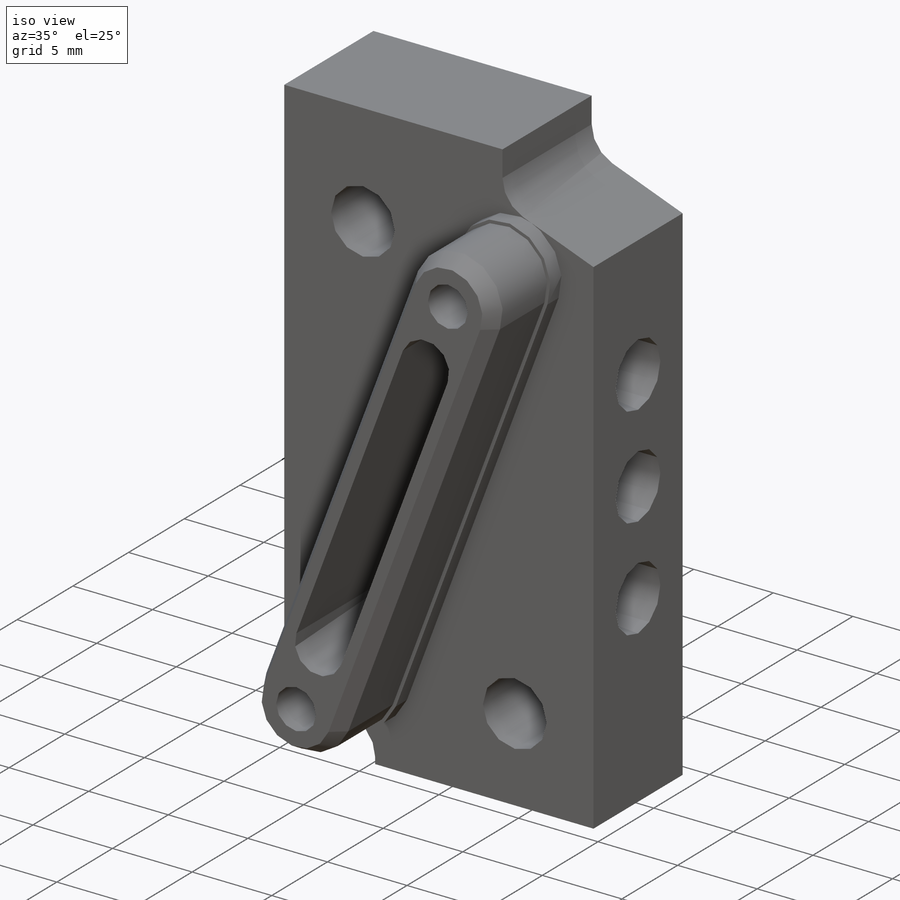
[diagram: iso view]
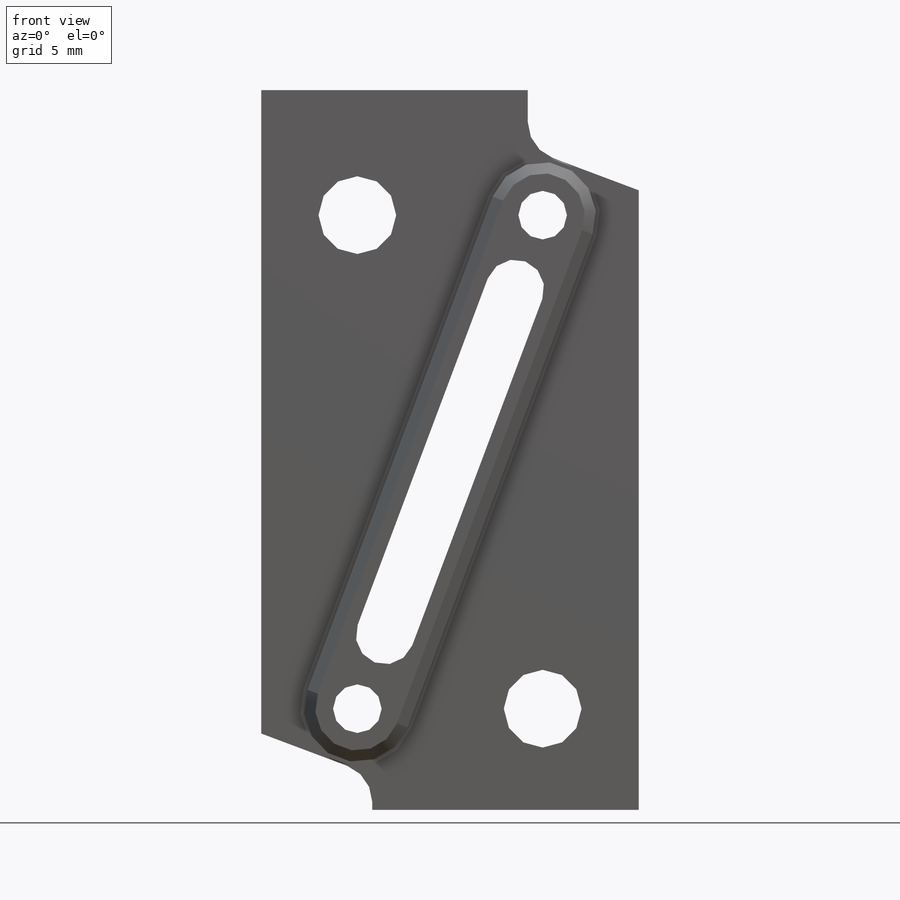
[diagram: front view]
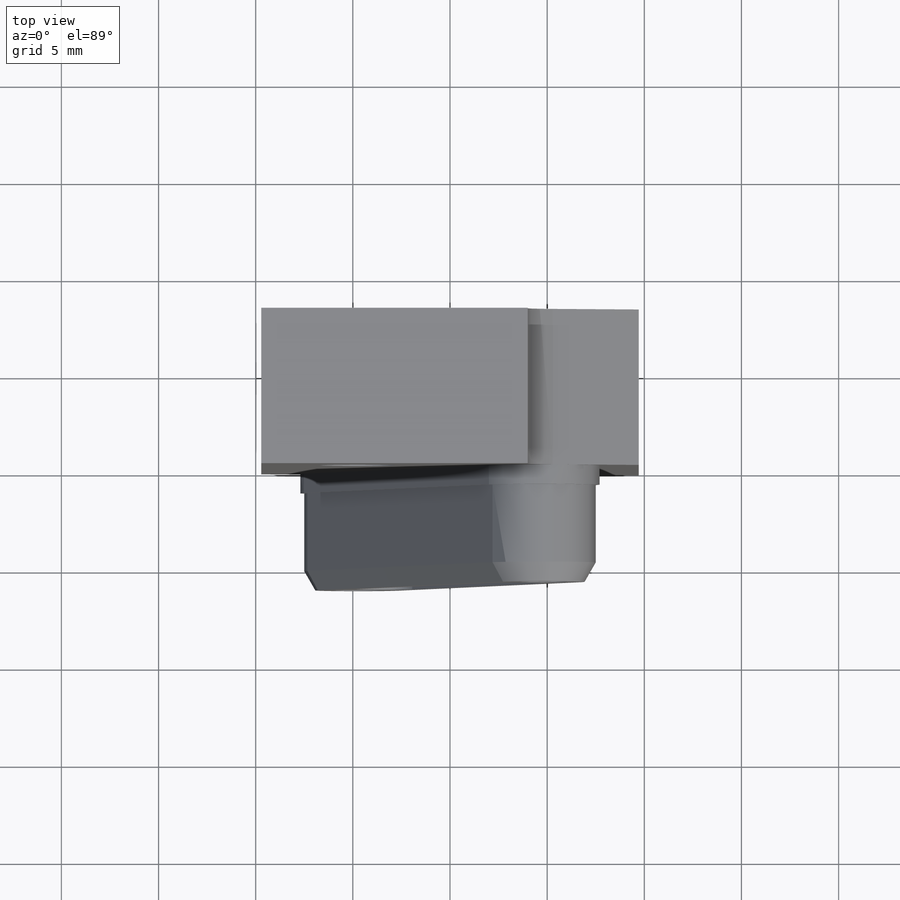
[diagram: top view]
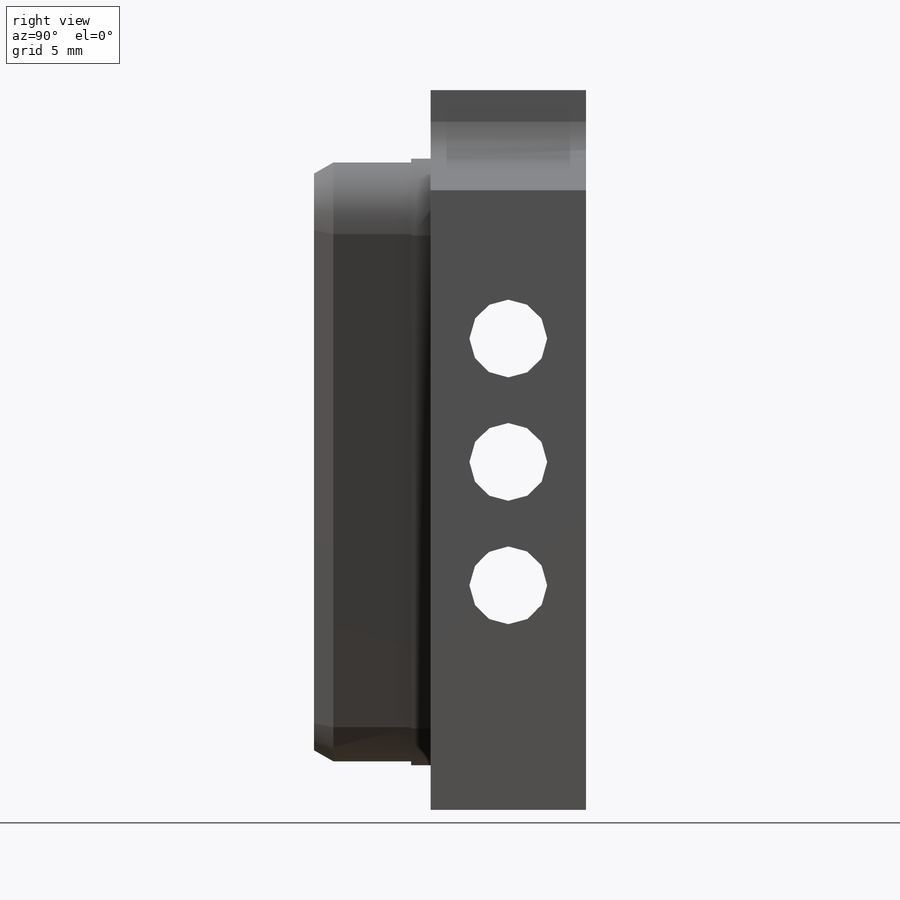
[diagram: right view]
SOLIDWORKS PART (.sldprt)
format: sldprt  version: not decoded by parser v0  size: 913,408 bytes
history: native  units: mm
features: sketch x13, cut_extrude x4, extrude x3, hole x3, thread x2, material x1, chamfer x1, pattern_circular x1, fillet x1, move_body x1 (+11 scaffold rows collapsed; 1 parser-record rows omitted)
feature tree (42):
  scaffold x11  (default folders/planes/origin — collapsed)
  material  "6061 Alloy"
  sketch  "Sketch1"  dims[c1.D1=5.9mm c1.D2=~49.063324mm c2.D2=69.42deg c2.D3=27.103mm]
  extrude  "Boss-Extrude1"  Depth=6mm
  sketch  "Sketch2"  dims[D1=18.0mm D2=33.0mm]
  extrude  "Boss-Extrude2"  Depth=8mm
  sketch  "Sketch3"  dims[c1.D1=3.0mm c1.D2=19.05mm c2.D1=2.0mm]
  cut_extrude  "Cut-Extrude1"  [1 undecoded]
  sketch  "Sketch4"  dims[D1=0.5mm]
  cut_extrude  "Cut-Extrude2"  Depth=1mm
  chamfer  "Chamfer1"  Distance=1mm Angle=30deg
  sketch  "Sketch11"  dims[D1=0.5mm]
  cut_extrude  "Cut-Extrude4"  [1 undecoded]
  sketch  "Sketch17"  dims[c1.D3=7.0mm c1.D1=2.0mm c1.D2=2.0mm c2.D3=3.5mm c2.D4=~3.691204mm c2.D2=4.0mm]
  extrude  "Boss-Extrude3"  [1 undecoded]
  pattern_circular  "CirPattern1"  Count=2 Angle=360deg
  fillet  "Fillet3"  Radius=2mm
  sketch  "Sketch20"  dims[D1=0.4mm]
  cut_extrude  "Cut-Extrude5"  [1 undecoded]
  hole  "Ø4.0 (4) Diameter Hole3"  Diameter=4mm Depth=19.427108mm
  sketch  "Sketch7"  dims[D1=12.7mm]
  sketch  "Sketch9"  dims[hole-wizard template sketch: 60 standard entries collapsed; hole parameters kept: c18.Thru Hole Depth=~19.427108mm]
  hole  "M3x0.5 Tapped Hole1"  Diameter=2.5mm Depth=14mm
  sketch  "Sketch16"  dims[c1.D1=19.05mm c1.D2=25.4mm c1.D3=19.05mm c2.D1=25.4mm c2.D2=10.0mm c3.D1=25.4mm]
  sketch  "Sketch15"  dims[hole-wizard template sketch: 60 standard entries collapsed; hole parameters kept: c18.Thru Tap Drill Depth=14.0mm]
  thread  "Hole Thread10"  Diameter=3mm  [1 undecoded]
  thread  "Hole Thread12"  Diameter=3mm  [1 undecoded]
  hole  "Ø4.0 (4) Diameter Hole5"  Diameter=4mm Depth=8mm
  sketch  "Sketch19"
  sketch  "Sketch18"  dims[hole-wizard template sketch: 60 standard entries collapsed; hole parameters kept: c18.Thru Hole Depth=8.0mm]
  parser-record x1  (decoder bookkeeping rows leaked as tree rows — omitted from the tree; the rows remain in map.json)
  move_body  "Body-Move/Copy1"
decode coverage: 23 of 29 modeling features carry decoded parameters
note: ~ marks probable driven/reference dimensions
note: 6 parameter values undecoded
summary: no parameter record found for 4 features
note: suppression state not decoded; provenance and decode notes live in map.json
